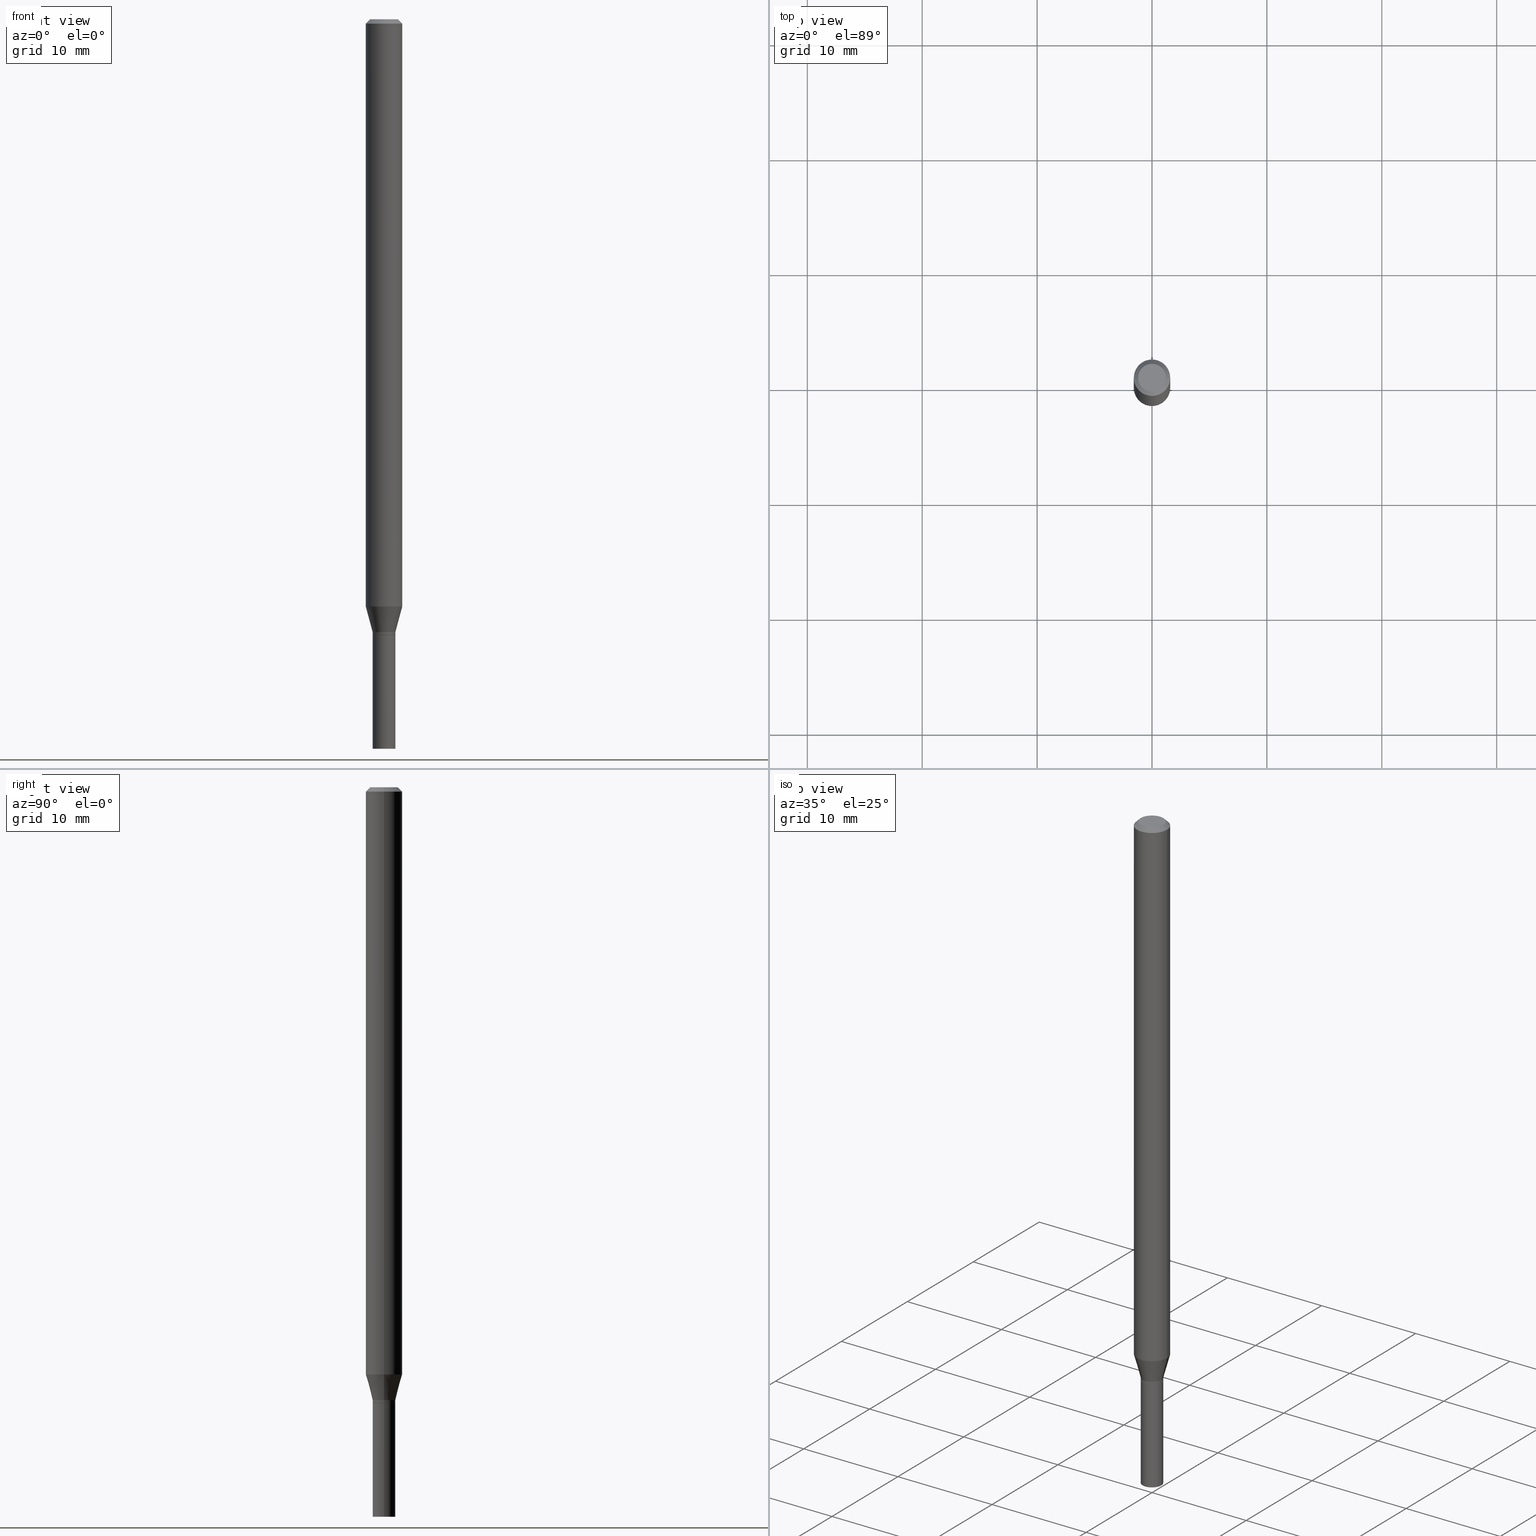
[diagram: canonical four-view strip — front | top / right | iso, engineering-drawing reading convention]
A machine part, canonical four-view strip (front | top / right | iso — engineering-drawing reading convention). The complete STEP part file that produces these views, byte-faithful:
ISO-10303-21;
HEADER;
FILE_DESCRIPTION (( 'STEP AP203' ),
    '1' );
FILE_NAME ('00601.STEP',
    '2024-03-19T21:58:08',
    ( '' ),
    ( '' ),
    'SwSTEP 2.0',
    'SolidWorks 2023',
    '' );
FILE_SCHEMA (( 'CONFIG_CONTROL_DESIGN' ));
ENDSEC;

DATA;
#1 = APPROVAL_STATUS ( 'not_yet_approved' ) ;
#2 = ORIENTED_EDGE ( 'NONE', *, *, #421, .T. ) ;
#3 = ORIENTED_EDGE ( 'NONE', *, *, #85, .F. ) ;
#4 = EDGE_CURVE ( 'NONE', #404, #311, #418, .T. ) ;
#5 = ORIENTED_EDGE ( 'NONE', *, *, #381, .F. ) ;
#6 = ORIENTED_EDGE ( 'NONE', *, *, #223, .F. ) ;
#7 = CARTESIAN_POINT ( 'NONE',  ( 5.159939181050639071E-29, -7.367025624959036939E-15, -2.110000000000000320 ) ) ;
#8 = AXIS2_PLACEMENT_3D ( 'NONE', #236, #93, #376 ) ;
#9 = DIRECTION ( 'NONE',  ( -2.445468806185136597E-29, 3.491481338843145583E-15, 1.000000000000000000 ) ) ;
#10 = DIRECTION ( 'NONE',  ( 1.000000000000000000, -6.982962677686266711E-15, 4.876176775795935793E-29 ) ) ;
#11 = ORIENTED_EDGE ( 'NONE', *, *, #85, .T. ) ;
#12 = CYLINDRICAL_SURFACE ( 'NONE', #249, 0.06250000000000000000 ) ;
#13 = EDGE_CURVE ( 'NONE', #330, #117, #204, .T. ) ;
#14 = APPLICATION_CONTEXT ( 'configuration controlled 3d designs of mechanical parts and assemblies' ) ;
#15 = ADVANCED_FACE ( 'NONE', ( #382 ), #203, .T. ) ;
#16 = VECTOR ( 'NONE', #465, 39.37007874015748143 ) ;
#17 = CC_DESIGN_SECURITY_CLASSIFICATION ( #372, ( #386 ) ) ;
#18 = DIRECTION ( 'NONE',  ( -1.000000000000000000, 6.982962677686265922E-15, -4.876176775795935793E-29 ) ) ;
#19 = ORIENTED_EDGE ( 'NONE', *, *, #145, .F. ) ;
#20 = CARTESIAN_POINT ( 'NONE',  ( 0.03899999999999999994, -2.723355444297643682E-16, 1.901708942560414931E-30 ) ) ;
#21 = CARTESIAN_POINT ( 'NONE',  ( 5.135484492988787526E-29, -7.332110811570605290E-15, -2.100000000000000089 ) ) ;
#22 = CIRCLE ( 'NONE', #413, 0.06250000000000000000 ) ;
#23 = DIRECTION ( 'NONE',  ( -2.445468806185136597E-29, 3.491481338843145583E-15, 1.000000000000000000 ) ) ;
#24 = ORIENTED_EDGE ( 'NONE', *, *, #389, .F. ) ;
#25 = ADVANCED_BREP_SHAPE_REPRESENTATION ( '00601', ( #336, #178, #83 ), #66 ) ;
#26 = CARTESIAN_POINT ( 'NONE',  ( 6.113672015462842613E-29, -8.728703347107864943E-15, -2.500000000000000000 ) ) ;
#27 = VERTEX_POINT ( 'NONE', #172 ) ;
#28 = EDGE_CURVE ( 'NONE', #127, #290, #143, .T. ) ;
#29 = LENGTH_MEASURE_WITH_UNIT ( LENGTH_MEASURE( 0.02539999999999999897 ), #390 );
#30 = CARTESIAN_POINT ( 'NONE',  ( 0.000000000000000000, 0.000000000000000000, 0.000000000000000000 ) ) ;
#31 = CIRCLE ( 'NONE', #430, 0.03899999999999999994 ) ;
#32 = LOCAL_TIME ( 17, 58, 8.000000000000000000, #400 ) ;
#33 = CALENDAR_DATE ( 2024, 19, 3 ) ;
#34 = PERSON_AND_ORGANIZATION ( #345, #409 ) ;
#35 = CC_DESIGN_PERSON_AND_ORGANIZATION_ASSIGNMENT ( #282, #428, ( #208 ) ) ;
#36 = LINE ( 'NONE', #432, #161 ) ;
#37 = CARTESIAN_POINT ( 'NONE',  ( 3.668203209277705088E-31, -5.237222008264718399E-17, -0.01499999999999999944 ) ) ;
#38 = APPROVAL_PERSON_ORGANIZATION ( #34, #179, #398 ) ;
#39 = ORIENTED_EDGE ( 'NONE', *, *, #96, .T. ) ;
#40 = DIRECTION ( 'NONE',  ( 1.000000000000000000, -6.982962677686265922E-15, 4.876176775795935793E-29 ) ) ;
#41 = CC_DESIGN_PERSON_AND_ORGANIZATION_ASSIGNMENT ( #459, #142, ( #386 ) ) ;
#42 = ORIENTED_EDGE ( 'NONE', *, *, #438, .T. ) ;
#43 = ORIENTED_EDGE ( 'NONE', *, *, #13, .T. ) ;
#44 = DIMENSIONAL_EXPONENTS ( 1.000000000000000000, 0.000000000000000000, 0.000000000000000000, 0.000000000000000000, 0.000000000000000000, 0.000000000000000000, 0.000000000000000000 ) ;
#45 = AXIS2_PLACEMENT_3D ( 'NONE', #335, #300, #364 ) ;
#46 = EDGE_LOOP ( 'NONE', ( #75, #293, #42, #111 ) ) ;
#47 = CC_DESIGN_APPROVAL ( #173, ( #425 ) ) ;
#48 = DIRECTION ( 'NONE',  ( 1.000000000000000000, -6.982962677686258033E-15, 0.000000000000000000 ) ) ;
#49 = FACE_OUTER_BOUND ( 'NONE', #358, .T. ) ;
#50 = SHAPE_DEFINITION_REPRESENTATION ( #181, #25 ) ;
#51 = DESIGN_CONTEXT ( 'detailed design', #408, 'design' ) ;
#52 = VECTOR ( 'NONE', #270, 39.37007874015748143 ) ;
#53 = ORIENTED_EDGE ( 'NONE', *, *, #438, .F. ) ;
#54 = DIRECTION ( 'NONE',  ( 1.000000000000000000, -6.982962677686265922E-15, 4.876176775795935793E-29 ) ) ;
#55 = DIRECTION ( 'NONE',  ( -2.445468806185136597E-29, 3.491481338843145583E-15, 1.000000000000000000 ) ) ;
#56 = CARTESIAN_POINT ( 'NONE',  ( 5.159939181050637950E-29, -7.367025624959036939E-15, -2.109999999999999876 ) ) ;
#57 = CARTESIAN_POINT ( 'NONE',  ( 0.000000000000000000, 0.000000000000000000, 0.000000000000000000 ) ) ;
#58 = DIRECTION ( 'NONE',  ( -2.445468806185136597E-29, 3.491481338843145583E-15, 1.000000000000000000 ) ) ;
#59 = AXIS2_PLACEMENT_3D ( 'NONE', #426, #393, #319 ) ;
#60 = VECTOR ( 'NONE', #445, 39.37007874015748143 ) ;
#61 = DIRECTION ( 'NONE',  ( -2.445468806185136597E-29, 3.491481338843145583E-15, 1.000000000000000000 ) ) ;
#62 = LINE ( 'NONE', #304, #317 ) ;
#63 = APPLICATION_PROTOCOL_DEFINITION ( 'international standard', 'config_control_design', 1994, #408 ) ;
#64 = CARTESIAN_POINT ( 'NONE',  ( -0.03849999999999999256, -7.093466671691397730E-15, -2.109999999999999876 ) ) ;
#65 = CLOSED_SHELL ( 'NONE', ( #297, #446, #176, #253, #285, #312, #163, #192, #209, #216, #69, #238 ) ) ;
#66 =( GEOMETRIC_REPRESENTATION_CONTEXT ( 3 ) GLOBAL_UNCERTAINTY_ASSIGNED_CONTEXT ( ( #84 ) ) GLOBAL_UNIT_ASSIGNED_CONTEXT ( ( #395, #454, #324 ) ) REPRESENTATION_CONTEXT ( 'NONE', 'WORKASPACE' ) );
#67 = ORIENTED_EDGE ( 'NONE', *, *, #160, .T. ) ;
#68 = MECHANICAL_CONTEXT ( 'NONE', #14, 'mechanical' ) ;
#69 = ADVANCED_FACE ( 'NONE', ( #280 ), #466, .T. ) ;
#70 = DIRECTION ( 'NONE',  ( 1.000000000000000000, -6.982962677686265922E-15, 4.876176775795935793E-29 ) ) ;
#71 = DIRECTION ( 'NONE',  ( -1.000000000000000000, 6.982962677686266711E-15, 0.000000000000000000 ) ) ;
#72 = PERSON_AND_ORGANIZATION ( #345, #409 ) ;
#73 = CARTESIAN_POINT ( 'NONE',  ( 3.668203209277705088E-31, -5.237222008264718399E-17, -0.01499999999999999944 ) ) ;
#74 = DATE_AND_TIME ( #248, #250 ) ;
#75 = ORIENTED_EDGE ( 'NONE', *, *, #184, .F. ) ;
#76 = CC_DESIGN_PERSON_AND_ORGANIZATION_ASSIGNMENT ( #138, #254, ( #386 ) ) ;
#77 = DIRECTION ( 'NONE',  ( -2.438088387897960049E-29, 3.491481338843145188E-15, 1.000000000000000000 ) ) ;
#78 = PLANE ( 'NONE',  #135 ) ;
#79 = CARTESIAN_POINT ( 'NONE',  ( 0.03899999999999999994, -7.639361169388800962E-15, -2.110000000000000320 ) ) ;
#80 = FACE_OUTER_BOUND ( 'NONE', #150, .T. ) ;
#81 = CALENDAR_DATE ( 2024, 19, 3 ) ;
#82 = AXIS2_PLACEMENT_3D ( 'NONE', #57, #23, #132 ) ;
#83 = AXIS2_PLACEMENT_3D ( 'NONE', #215, #289, #245 ) ;
#84 = UNCERTAINTY_MEASURE_WITH_UNIT (LENGTH_MEASURE( 1.000000000000000082E-05 ), #395, 'distance_accuracy_value', 'NONE');
#85 = EDGE_CURVE ( 'NONE', #117, #330, #316, .T. ) ;
#86 = CARTESIAN_POINT ( 'NONE',  ( 4.921009067913102377E-29, -7.025896746439933678E-15, -2.012296806022130458 ) ) ;
#87 = ORIENTED_EDGE ( 'NONE', *, *, #399, .F. ) ;
#88 = PRODUCT_RELATED_PRODUCT_CATEGORY ( 'detail', '', ( #208 ) ) ;
#89 = DIRECTION ( 'NONE',  ( -2.445468806185136597E-29, 3.491481338843145583E-15, 1.000000000000000000 ) ) ;
#90 = VECTOR ( 'NONE', #128, 39.37007874015748854 ) ;
#91 = CARTESIAN_POINT ( 'NONE',  ( -4.193002486944321875E-45, 5.986496290552430293E-31, 1.714600683655944577E-16 ) ) ;
#92 = ORIENTED_EDGE ( 'NONE', *, *, #433, .T. ) ;
#93 = DIRECTION ( 'NONE',  ( -2.445468806185136597E-29, 3.491481338843145583E-15, 1.000000000000000000 ) ) ;
#94 = DIRECTION ( 'NONE',  ( 1.000000000000000000, -6.982962677686271444E-15, 0.000000000000000000 ) ) ;
#95 = DIRECTION ( 'NONE',  ( -2.445468806185136597E-29, 3.491481338843145583E-15, 1.000000000000000000 ) ) ;
#96 = EDGE_CURVE ( 'NONE', #311, #309, #22, .T. ) ;
#97 = CARTESIAN_POINT ( 'NONE',  ( 5.135484492988787526E-29, -7.332110811570605290E-15, -2.100000000000000089 ) ) ;
#98 = AXIS2_PLACEMENT_3D ( 'NONE', #278, #61, #206 ) ;
#99 = AXIS2_PLACEMENT_3D ( 'NONE', #379, #55, #94 ) ;
#100 = CARTESIAN_POINT ( 'NONE',  ( 5.159939181050637950E-29, -7.367025624959036939E-15, -2.109999999999999876 ) ) ;
#101 = DATE_AND_TIME ( #320, #361 ) ;
#102 = DIRECTION ( 'NONE',  ( 1.000000000000000000, -6.982962677686271444E-15, 0.000000000000000000 ) ) ;
#103 = SECURITY_CLASSIFICATION_LEVEL ( 'unclassified' ) ;
#104 = APPROVAL ( #463, 'UNSPECIFIED' ) ;
#105 = PERSON_AND_ORGANIZATION ( #345, #409 ) ;
#106 = APPROVAL_PERSON_ORGANIZATION ( #355, #104, #228 ) ;
#107 = APPROVAL_ROLE ( '' ) ;
#108 = CARTESIAN_POINT ( 'NONE',  ( -0.03899999999999992362, 2.771116669464385298E-16, -1.918384685199409225E-30 ) ) ;
#109 = VERTEX_POINT ( 'NONE', #396 ) ;
#110 = COORDINATED_UNIVERSAL_TIME_OFFSET ( 5, 0, .BEHIND. ) ;
#111 = ORIENTED_EDGE ( 'NONE', *, *, #265, .F. ) ;
#112 = EDGE_CURVE ( 'NONE', #330, #217, #392, .T. ) ;
#113 = DIRECTION ( 'NONE',  ( -2.445468806185136597E-29, 3.491481338843145583E-15, 1.000000000000000000 ) ) ;
#114 = AXIS2_PLACEMENT_3D ( 'NONE', #442, #331, #329 ) ;
#115 = DIRECTION ( 'NONE',  ( 1.000000000000000000, -6.982962677686266711E-15, 4.876176775795935232E-29 ) ) ;
#116 = VECTOR ( 'NONE', #378, 39.37007874015748143 ) ;
#117 = VERTEX_POINT ( 'NONE', #211 ) ;
#118 = ORIENTED_EDGE ( 'NONE', *, *, #371, .T. ) ;
#119 = DIRECTION ( 'NONE',  ( -2.445468806185136597E-29, 3.491481338843145583E-15, 1.000000000000000000 ) ) ;
#120 = CC_DESIGN_PERSON_AND_ORGANIZATION_ASSIGNMENT ( #72, #460, ( #372 ) ) ;
#121 = ORIENTED_EDGE ( 'NONE', *, *, #160, .F. ) ;
#122 = CARTESIAN_POINT ( 'NONE',  ( 0.000000000000000000, 0.000000000000000000, 0.000000000000000000 ) ) ;
#123 = AXIS2_PLACEMENT_3D ( 'NONE', #7, #77, #40 ) ;
#124 = CIRCLE ( 'NONE', #354, 0.03899999999999964606 ) ;
#125 = CARTESIAN_POINT ( 'NONE',  ( -0.06250000000000000000, -3.095045273411227960E-15, -0.01499999999999999944 ) ) ;
#126 = DIRECTION ( 'NONE',  ( 1.000000000000000000, -6.982962677686258033E-15, 0.000000000000000000 ) ) ;
#127 = VERTEX_POINT ( 'NONE', #140 ) ;
#128 = DIRECTION ( 'NONE',  ( 0.7071067811869518049, -2.468850131086492060E-15, 0.7071067811861430075 ) ) ;
#129 = DIRECTION ( 'NONE',  ( 1.000000000000000000, -6.982962677686267499E-15, 4.852736867747366768E-29 ) ) ;
#130 = VECTOR ( 'NONE', #351, 39.37007874015748143 ) ;
#131 = DIRECTION ( 'NONE',  ( -2.445468806185136597E-29, 3.491481338843145583E-15, 1.000000000000000000 ) ) ;
#132 = DIRECTION ( 'NONE',  ( 1.000000000000000000, -6.982962677686265922E-15, 4.876176775795935793E-29 ) ) ;
#133 = FACE_OUTER_BOUND ( 'NONE', #295, .T. ) ;
#134 = FACE_OUTER_BOUND ( 'NONE', #440, .T. ) ;
#135 = AXIS2_PLACEMENT_3D ( 'NONE', #262, #267, #226 ) ;
#136 = ADVANCED_FACE ( 'NONE', ( #284 ), #464, .F. ) ;
#137 = CONICAL_SURFACE ( 'NONE', #437, 0.03849999999999999256, 0.7853981633980202659 ) ;
#138 = PERSON_AND_ORGANIZATION ( #345, #409 ) ;
#139 = CC_DESIGN_PERSON_AND_ORGANIZATION_ASSIGNMENT ( #105, #210, ( #425 ) ) ;
#140 = CARTESIAN_POINT ( 'NONE',  ( -0.03899999999999999994, -7.770752819087011622E-15, -2.500000000000000000 ) ) ;
#141 = DATE_TIME_ROLE ( 'creation_date' ) ;
#142 = PERSON_AND_ORGANIZATION_ROLE ( 'creator' ) ;
#143 = CIRCLE ( 'NONE', #98, 0.03899999999999999994 ) ;
#144 = CIRCLE ( 'NONE', #164, 0.03899999999999999994 ) ;
#145 = EDGE_CURVE ( 'NONE', #328, #311, #36, .T. ) ;
#146 = APPROVAL_STATUS ( 'not_yet_approved' ) ;
#147 = ORIENTED_EDGE ( 'NONE', *, *, #455, .F. ) ;
#148 = ORIENTED_EDGE ( 'NONE', *, *, #112, .F. ) ;
#149 = COORDINATED_UNIVERSAL_TIME_OFFSET ( 5, 0, .BEHIND. ) ;
#150 = EDGE_LOOP ( 'NONE', ( #121, #370, #388, #436 ) ) ;
#151 = DIRECTION ( 'NONE',  ( -2.445468806185136597E-29, 3.491481338843145583E-15, 1.000000000000000000 ) ) ;
#152 = CIRCLE ( 'NONE', #273, 0.03899999999999964606 ) ;
#153 = ORIENTED_EDGE ( 'NONE', *, *, #416, .T. ) ;
#154 = FACE_OUTER_BOUND ( 'NONE', #272, .T. ) ;
#155 = CC_DESIGN_DATE_AND_TIME_ASSIGNMENT ( #424, #141, ( #425 ) ) ;
#156 = CARTESIAN_POINT ( 'NONE',  ( 5.159939181050639071E-29, -7.367025624959036939E-15, -2.110000000000000320 ) ) ;
#157 = EDGE_LOOP ( 'NONE', ( #231, #325, #6, #256 ) ) ;
#158 = ORIENTED_EDGE ( 'NONE', *, *, #421, .F. ) ;
#159 = FACE_OUTER_BOUND ( 'NONE', #341, .T. ) ;
#160 = EDGE_CURVE ( 'NONE', #217, #109, #323, .T. ) ;
#161 = VECTOR ( 'NONE', #183, 39.37007874015748143 ) ;
#162 = LOCAL_TIME ( 17, 58, 8.000000000000000000, #149 ) ;
#163 = ADVANCED_FACE ( 'NONE', ( #339 ), #12, .T. ) ;
#164 = AXIS2_PLACEMENT_3D ( 'NONE', #26, #165, #199 ) ;
#165 = DIRECTION ( 'NONE',  ( -2.445468806185136597E-29, 3.491481338843145583E-15, 1.000000000000000000 ) ) ;
#166 = DIRECTION ( 'NONE',  ( -2.445468806185136597E-29, 3.491481338843145583E-15, 1.000000000000000000 ) ) ;
#167 = LINE ( 'NONE', #275, #116 ) ;
#168 = ORIENTED_EDGE ( 'NONE', *, *, #13, .F. ) ;
#169 = FACE_OUTER_BOUND ( 'NONE', #46, .T. ) ;
#170 = CIRCLE ( 'NONE', #45, 0.06250000000000000000 ) ;
#171 = CARTESIAN_POINT ( 'NONE',  ( -0.03899999999999999994, -7.770752819087011622E-15, -2.110000000000000320 ) ) ;
#172 = CARTESIAN_POINT ( 'NONE',  ( 0.03899999999999964606, -7.604446356000367735E-15, -2.100000000000000089 ) ) ;
#173 = APPROVAL ( #1, 'UNSPECIFIED' ) ;
#174 = DIRECTION ( 'NONE',  ( -2.445468806185136597E-29, 3.491481338843145583E-15, 1.000000000000000000 ) ) ;
#175 = DIRECTION ( 'NONE',  ( -2.445468806185136877E-29, 3.491481338843145188E-15, 1.000000000000000000 ) ) ;
#176 = ADVANCED_FACE ( 'NONE', ( #322 ), #422, .T. ) ;
#177 = DIRECTION ( 'NONE',  ( 1.000000000000000000, -6.982962677686271444E-15, 0.000000000000000000 ) ) ;
#178 = MANIFOLD_SOLID_BREP ( 'Body-Move/Copy2[2]', #65 ) ;
#179 = APPROVAL ( #146, 'UNSPECIFIED' ) ;
#180 = AXIS2_PLACEMENT_3D ( 'NONE', #190, #151, #10 ) ;
#181 = PRODUCT_DEFINITION_SHAPE ( 'NONE', 'NONE',  #425 ) ;
#182 = COORDINATED_UNIVERSAL_TIME_OFFSET ( 5, 0, .BEHIND. ) ;
#183 = DIRECTION ( 'NONE',  ( 0.7071067811865435759, -7.319954787623241846E-15, -0.7071067811865514585 ) ) ;
#184 = EDGE_CURVE ( 'NONE', #127, #406, #218, .T. ) ;
#185 = EDGE_LOOP ( 'NONE', ( #11, #191, #158, #306 ) ) ;
#186 = AXIS2_PLACEMENT_3D ( 'NONE', #122, #119, #115 ) ;
#187 = ORIENTED_EDGE ( 'NONE', *, *, #4, .F. ) ;
#188 = CARTESIAN_POINT ( 'NONE',  ( 0.03900000000000019423, -7.637615428719381825E-15, -2.109500000000000153 ) ) ;
#189 = ORIENTED_EDGE ( 'NONE', *, *, #371, .F. ) ;
#190 = CARTESIAN_POINT ( 'NONE',  ( 0.000000000000000000, 0.000000000000000000, 0.000000000000000000 ) ) ;
#191 = ORIENTED_EDGE ( 'NONE', *, *, #112, .T. ) ;
#192 = ADVANCED_FACE ( 'NONE', ( #134 ), #340, .T. ) ;
#193 = AXIS2_PLACEMENT_3D ( 'NONE', #287, #251, #70 ) ;
#194 = ORIENTED_EDGE ( 'NONE', *, *, #255, .F. ) ;
#195 = VERTEX_POINT ( 'NONE', #362 ) ;
#196 = CYLINDRICAL_SURFACE ( 'NONE', #186, 0.03899999999999992362 ) ;
#197 = CARTESIAN_POINT ( 'NONE',  ( 5.159939181050639071E-29, -7.367025624959036939E-15, -2.110000000000000320 ) ) ;
#198 = CLOSED_SHELL ( 'NONE', ( #15, #136, #384, #301 ) ) ;
#199 = DIRECTION ( 'NONE',  ( 1.000000000000000000, -6.982962677686283277E-15, 0.000000000000000000 ) ) ;
#200 = CARTESIAN_POINT ( 'NONE',  ( 0.03899999999999964606, -7.604446356000367735E-15, -2.100000000000000089 ) ) ;
#201 = DIRECTION ( 'NONE',  ( -2.445468806185136877E-29, 3.491481338843145188E-15, 1.000000000000000000 ) ) ;
#202 = DIRECTION ( 'NONE',  ( 1.000000000000000000, -6.982962677686271444E-15, 0.000000000000000000 ) ) ;
#203 = CYLINDRICAL_SURFACE ( 'NONE', #82, 0.03899999999999999994 ) ;
#204 = CIRCLE ( 'NONE', #99, 0.03849999999999999256 ) ;
#205 = DIRECTION ( 'NONE',  ( 1.000000000000000000, -6.982962677686266711E-15, 0.000000000000000000 ) ) ;
#206 = DIRECTION ( 'NONE',  ( 1.000000000000000000, -6.982962677686283277E-15, 0.000000000000000000 ) ) ;
#207 = DIRECTION ( 'NONE',  ( -2.445468806185136597E-29, 3.491481338843145583E-15, 1.000000000000000000 ) ) ;
#208 = PRODUCT ( '00601', '00601', '', ( #68 ) ) ;
#209 = ADVANCED_FACE ( 'NONE', ( #49 ), #78, .F. ) ;
#210 = PERSON_AND_ORGANIZATION_ROLE ( 'creator' ) ;
#211 = CARTESIAN_POINT ( 'NONE',  ( 0.03849999999999999256, -7.635869688049957955E-15, -2.109999999999999876 ) ) ;
#212 = DATE_AND_TIME ( #247, #32 ) ;
#213 = CIRCLE ( 'NONE', #288, 0.06250000000000000000 ) ;
#214 = DIRECTION ( 'NONE',  ( -2.445468806185136597E-29, 3.491481338843145583E-15, 1.000000000000000000 ) ) ;
#215 = CARTESIAN_POINT ( 'NONE',  ( 0.000000000000000000, 0.000000000000000000, 0.000000000000000000 ) ) ;
#216 = ADVANCED_FACE ( 'NONE', ( #159 ), #222, .F. ) ;
#217 = VERTEX_POINT ( 'NONE', #374 ) ;
#218 = LINE ( 'NONE', #283, #16 ) ;
#219 = VERTEX_POINT ( 'NONE', #188 ) ;
#220 = VECTOR ( 'NONE', #461, 39.37007874015748854 ) ;
#221 = CC_DESIGN_APPROVAL ( #104, ( #372 ) ) ;
#222 = PLANE ( 'NONE',  #123 ) ;
#223 = EDGE_CURVE ( 'NONE', #404, #195, #170, .T. ) ;
#224 = EDGE_LOOP ( 'NONE', ( #264, #291, #194, #53 ) ) ;
#225 = DIRECTION ( 'NONE',  ( 2.438088387897960049E-29, -3.491481338843145188E-15, -1.000000000000000000 ) ) ;
#226 = DIRECTION ( 'NONE',  ( -1.000000000000000000, 6.982962677686265922E-15, -4.876176775795935793E-29 ) ) ;
#227 = FACE_OUTER_BOUND ( 'NONE', #157, .T. ) ;
#228 = APPROVAL_ROLE ( '' ) ;
#229 = CONICAL_SURFACE ( 'NONE', #414, 0.03899999999999964606, 0.2617993877991505736 ) ;
#230 = EDGE_CURVE ( 'NONE', #217, #219, #258, .T. ) ;
#231 = ORIENTED_EDGE ( 'NONE', *, *, #381, .T. ) ;
#232 = LINE ( 'NONE', #20, #327 ) ;
#233 = ORIENTED_EDGE ( 'NONE', *, *, #28, .F. ) ;
#234 = AXIS2_PLACEMENT_3D ( 'NONE', #91, #246, #391 ) ;
#235 = AXIS2_PLACEMENT_3D ( 'NONE', #453, #279, #129 ) ;
#236 = CARTESIAN_POINT ( 'NONE',  ( 5.158716446647546270E-29, -7.365279884289616224E-15, -2.109500000000000153 ) ) ;
#237 = CARTESIAN_POINT ( 'NONE',  ( 0.06250000000000000000, -4.364351673553916694E-16, 3.047610484872459871E-30 ) ) ;
#238 = ADVANCED_FACE ( 'NONE', ( #80 ), #196, .T. ) ;
#239 = FACE_OUTER_BOUND ( 'NONE', #185, .T. ) ;
#240 = ORIENTED_EDGE ( 'NONE', *, *, #366, .F. ) ;
#241 = CARTESIAN_POINT ( 'NONE',  ( -0.03849999999999999256, -7.090817444517286529E-15, -2.109999999999999876 ) ) ;
#242 = CARTESIAN_POINT ( 'NONE',  ( -0.06250000000000000000, 4.440892098500626162E-16, -3.074334431409316114E-30 ) ) ;
#243 = AXIS2_PLACEMENT_3D ( 'NONE', #86, #131, #419 ) ;
#244 = DIRECTION ( 'NONE',  ( -2.445468806185136597E-29, 3.491481338843145583E-15, 1.000000000000000000 ) ) ;
#245 = DIRECTION ( 'NONE',  ( 1.000000000000000000, 0.000000000000000000, 0.000000000000000000 ) ) ;
#246 = DIRECTION ( 'NONE',  ( -2.445468806185136597E-29, 3.491481338843145583E-15, 1.000000000000000000 ) ) ;
#247 = CALENDAR_DATE ( 2024, 19, 3 ) ;
#248 = CALENDAR_DATE ( 2024, 19, 3 ) ;
#249 = AXIS2_PLACEMENT_3D ( 'NONE', #30, #429, #315 ) ;
#250 = LOCAL_TIME ( 17, 58, 8.000000000000000000, #182 ) ;
#251 = DIRECTION ( 'NONE',  ( -2.438088387897960049E-29, 3.491481338843145188E-15, 1.000000000000000000 ) ) ;
#252 = APPROVAL_DATE_TIME ( #74, #173 ) ;
#253 = ADVANCED_FACE ( 'NONE', ( #333 ), #368, .T. ) ;
#254 = PERSON_AND_ORGANIZATION_ROLE ( 'design_supplier' ) ;
#255 = EDGE_CURVE ( 'NONE', #261, #406, #377, .T. ) ;
#256 = ORIENTED_EDGE ( 'NONE', *, *, #356, .F. ) ;
#257 = CARTESIAN_POINT ( 'NONE',  ( 0.000000000000000000, 0.000000000000000000, 0.000000000000000000 ) ) ;
#258 = CIRCLE ( 'NONE', #114, 0.03900000000000019423 ) ;
#259 = CONICAL_SURFACE ( 'NONE', #423, 0.03899999999999964606, 0.2617993877991505736 ) ;
#260 = EDGE_CURVE ( 'NONE', #328, #410, #435, .T. ) ;
#261 = VERTEX_POINT ( 'NONE', #79 ) ;
#262 = CARTESIAN_POINT ( 'NONE',  ( 3.316907271900976096E-16, 0.04749999999999999362, -8.011532941225217989E-17 ) ) ;
#263 = EDGE_LOOP ( 'NONE', ( #363, #415, #39, #147 ) ) ;
#264 = ORIENTED_EDGE ( 'NONE', *, *, #366, .T. ) ;
#265 = EDGE_CURVE ( 'NONE', #406, #261, #31, .T. ) ;
#266 = VECTOR ( 'NONE', #175, 39.37007874015748143 ) ;
#267 = DIRECTION ( 'NONE',  ( 2.438088387897960049E-29, -3.491481338843145188E-15, -1.000000000000000000 ) ) ;
#268 = AXIS2_PLACEMENT_3D ( 'NONE', #257, #113, #403 ) ;
#269 = PLANE ( 'NONE',  #302 ) ;
#270 = DIRECTION ( 'NONE',  ( 0.2588190451025218497, 1.565188264969618221E-15, 0.9659258262890679791 ) ) ;
#271 = DIRECTION ( 'NONE',  ( -2.445468806185136877E-29, 3.491481338843145188E-15, 1.000000000000000000 ) ) ;
#272 = EDGE_LOOP ( 'NONE', ( #2, #67, #5, #434 ) ) ;
#273 = AXIS2_PLACEMENT_3D ( 'NONE', #21, #343, #346 ) ;
#274 = ORIENTED_EDGE ( 'NONE', *, *, #260, .T. ) ;
#275 = CARTESIAN_POINT ( 'NONE',  ( 0.03899999999999992362, -2.723355444297638751E-16, 1.901708942560411078E-30 ) ) ;
#276 = ORIENTED_EDGE ( 'NONE', *, *, #462, .F. ) ;
#277 = CARTESIAN_POINT ( 'NONE',  ( -0.04749999999999999362, 3.578768372314213957E-16, 1.714600683655920665E-16 ) ) ;
#278 = CARTESIAN_POINT ( 'NONE',  ( 6.113672015462842613E-29, -8.728703347107864943E-15, -2.500000000000000000 ) ) ;
#279 = DIRECTION ( 'NONE',  ( -2.445468806185136597E-29, 3.491481338843145583E-15, 1.000000000000000000 ) ) ;
#280 = FACE_OUTER_BOUND ( 'NONE', #347, .T. ) ;
#281 = AXIS2_PLACEMENT_3D ( 'NONE', #305, #89, #54 ) ;
#282 = PERSON_AND_ORGANIZATION ( #345, #409 ) ;
#283 = CARTESIAN_POINT ( 'NONE',  ( -0.03899999999999999994, 2.771116669464390721E-16, -1.918384685199413078E-30 ) ) ;
#284 = FACE_OUTER_BOUND ( 'NONE', #294, .T. ) ;
#285 = ADVANCED_FACE ( 'NONE', ( #227 ), #259, .T. ) ;
#286 = DATE_TIME_ROLE ( 'classification_date' ) ;
#287 = CARTESIAN_POINT ( 'NONE',  ( 6.198122052593289668E-29, -8.607766087339451973E-15, -2.500000000000000000 ) ) ;
#288 = AXIS2_PLACEMENT_3D ( 'NONE', #448, #58, #205 ) ;
#289 = DIRECTION ( 'NONE',  ( 0.000000000000000000, 0.000000000000000000, 1.000000000000000000 ) ) ;
#290 = VERTEX_POINT ( 'NONE', #337 ) ;
#291 = ORIENTED_EDGE ( 'NONE', *, *, #184, .T. ) ;
#292 = DATE_AND_TIME ( #81, #162 ) ;
#293 = ORIENTED_EDGE ( 'NONE', *, *, #28, .T. ) ;
#294 = EDGE_LOOP ( 'NONE', ( #240, #233 ) ) ;
#295 = EDGE_LOOP ( 'NONE', ( #303, #92, #385, #276 ) ) ;
#296 = CYLINDRICAL_SURFACE ( 'NONE', #268, 0.03899999999999992362 ) ;
#297 = ADVANCED_FACE ( 'NONE', ( #154 ), #296, .T. ) ;
#298 = EDGE_LOOP ( 'NONE', ( #452, #350 ) ) ;
#299 = CARTESIAN_POINT ( 'NONE',  ( 5.135484492988787526E-29, -7.332110811570605290E-15, -2.100000000000000089 ) ) ;
#300 = DIRECTION ( 'NONE',  ( -2.445468806185136597E-29, 3.491481338843145583E-15, 1.000000000000000000 ) ) ;
#301 = ADVANCED_FACE ( 'NONE', ( #375 ), #269, .F. ) ;
#302 = AXIS2_PLACEMENT_3D ( 'NONE', #338, #225, #18 ) ;
#303 = ORIENTED_EDGE ( 'NONE', *, *, #444, .F. ) ;
#304 = CARTESIAN_POINT ( 'NONE',  ( -0.03899999999999964606, -7.054999144624169126E-15, -2.100000000000000089 ) ) ;
#305 = CARTESIAN_POINT ( 'NONE',  ( 0.000000000000000000, 0.000000000000000000, 0.000000000000000000 ) ) ;
#306 = ORIENTED_EDGE ( 'NONE', *, *, #416, .F. ) ;
#307 = ORIENTED_EDGE ( 'NONE', *, *, #4, .T. ) ;
#308 = CYLINDRICAL_SURFACE ( 'NONE', #281, 0.03899999999999999994 ) ;
#309 = VERTEX_POINT ( 'NONE', #125 ) ;
#310 = LINE ( 'NONE', #451, #130 ) ;
#311 = VERTEX_POINT ( 'NONE', #412 ) ;
#312 = ADVANCED_FACE ( 'NONE', ( #133 ), #229, .T. ) ;
#313 = LINE ( 'NONE', #242, #60 ) ;
#314 = CARTESIAN_POINT ( 'NONE',  ( 5.159939181050637950E-29, -7.367025624959036939E-15, -2.109999999999999876 ) ) ;
#315 = DIRECTION ( 'NONE',  ( 1.000000000000000000, -6.982962677686266711E-15, 4.876176775795935793E-29 ) ) ;
#316 = CIRCLE ( 'NONE', #326, 0.03849999999999999256 ) ;
#317 = VECTOR ( 'NONE', #411, 39.37007874015748143 ) ;
#318 = APPROVAL_DATE_TIME ( #101, #179 ) ;
#319 = DIRECTION ( 'NONE',  ( -1.000000000000000000, 6.982962677686266711E-15, 0.000000000000000000 ) ) ;
#320 = CALENDAR_DATE ( 2024, 19, 3 ) ;
#321 = EDGE_CURVE ( 'NONE', #219, #27, #167, .T. ) ;
#322 = FACE_OUTER_BOUND ( 'NONE', #263, .T. ) ;
#323 = LINE ( 'NONE', #108, #266 ) ;
#324 =( NAMED_UNIT ( * ) SI_UNIT ( $, .STERADIAN. ) SOLID_ANGLE_UNIT ( ) );
#325 = ORIENTED_EDGE ( 'NONE', *, *, #444, .T. ) ;
#326 = AXIS2_PLACEMENT_3D ( 'NONE', #314, #457, #102 ) ;
#327 = VECTOR ( 'NONE', #271, 39.37007874015748143 ) ;
#328 = VERTEX_POINT ( 'NONE', #443 ) ;
#329 = DIRECTION ( 'NONE',  ( 1.000000000000000000, -6.982962677686273021E-15, 0.000000000000000000 ) ) ;
#330 = VERTEX_POINT ( 'NONE', #241 ) ;
#331 = DIRECTION ( 'NONE',  ( -2.445468806185136597E-29, 3.491481338843145583E-15, 1.000000000000000000 ) ) ;
#332 = VECTOR ( 'NONE', #201, 39.37007874015748143 ) ;
#333 = FACE_OUTER_BOUND ( 'NONE', #344, .T. ) ;
#334 = ORIENTED_EDGE ( 'NONE', *, *, #455, .T. ) ;
#335 = CARTESIAN_POINT ( 'NONE',  ( 4.921009067913102377E-29, -7.025896746439933678E-15, -2.012296806022130458 ) ) ;
#336 = MANIFOLD_SOLID_BREP ( 'Body-Move/Copy2[1]', #198 ) ;
#337 = CARTESIAN_POINT ( 'NONE',  ( 0.03899999999999999994, -9.001038891537628966E-15, -2.500000000000000000 ) ) ;
#338 = CARTESIAN_POINT ( 'NONE',  ( 2.723355444298159400E-16, 0.03899999999999263084, -2.110000000000000320 ) ) ;
#339 = FACE_OUTER_BOUND ( 'NONE', #439, .T. ) ;
#340 = CONICAL_SURFACE ( 'NONE', #59, 0.06250000000000000000, 0.7853981633974427279 ) ;
#341 = EDGE_LOOP ( 'NONE', ( #3, #168 ) ) ;
#342 = DIRECTION ( 'NONE',  ( 1.000000000000000000, -6.982962677686272233E-15, 0.000000000000000000 ) ) ;
#343 = DIRECTION ( 'NONE',  ( -2.445468806185136597E-29, 3.491481338843145583E-15, 1.000000000000000000 ) ) ;
#344 = EDGE_LOOP ( 'NONE', ( #359, #401, #373, #187 ) ) ;
#345 = PERSON ( 'UNSPECIFIED', 'UNSPECIFIED', 'UNSPECIFIED', ('UNSPECIFIED'), ('UNSPECIFIED'), ('UNSPECIFIED') ) ;
#346 = DIRECTION ( 'NONE',  ( 1.000000000000000000, -6.982962677686272233E-15, 0.000000000000000000 ) ) ;
#347 = EDGE_LOOP ( 'NONE', ( #148, #43, #153, #365 ) ) ;
#348 = CIRCLE ( 'NONE', #8, 0.03900000000000019423 ) ;
#349 = DIRECTION ( 'NONE',  ( 1.000000000000000000, -6.982962677686272233E-15, 0.000000000000000000 ) ) ;
#350 = ORIENTED_EDGE ( 'NONE', *, *, #265, .T. ) ;
#351 = DIRECTION ( 'NONE',  ( -0.7071067811865435759, 2.468850131082215251E-15, -0.7071067811865514585 ) ) ;
#352 = COORDINATED_UNIVERSAL_TIME_OFFSET ( 5, 0, .BEHIND. ) ;
#353 = AXIS2_PLACEMENT_3D ( 'NONE', #156, #166, #126 ) ;
#354 = AXIS2_PLACEMENT_3D ( 'NONE', #97, #174, #342 ) ;
#355 = PERSON_AND_ORGANIZATION ( #345, #409 ) ;
#356 = EDGE_CURVE ( 'NONE', #27, #404, #383, .T. ) ;
#357 = DIRECTION ( 'NONE',  ( 1.000000000000000000, -6.982962677686266711E-15, 0.000000000000000000 ) ) ;
#358 = EDGE_LOOP ( 'NONE', ( #441, #274 ) ) ;
#359 = ORIENTED_EDGE ( 'NONE', *, *, #223, .T. ) ;
#360 = CC_DESIGN_APPROVAL ( #179, ( #386 ) ) ;
#361 = LOCAL_TIME ( 17, 58, 8.000000000000000000, #352 ) ;
#362 = CARTESIAN_POINT ( 'NONE',  ( -0.06250000000000000000, -6.581807536589871062E-15, -2.012296806022130458 ) ) ;
#363 = ORIENTED_EDGE ( 'NONE', *, *, #260, .F. ) ;
#364 = DIRECTION ( 'NONE',  ( 1.000000000000000000, -6.982962677686262766E-15, 0.000000000000000000 ) ) ;
#365 = ORIENTED_EDGE ( 'NONE', *, *, #230, .F. ) ;
#366 = EDGE_CURVE ( 'NONE', #290, #127, #144, .T. ) ;
#367 = DIRECTION ( 'NONE',  ( 1.000000000000000000, -6.982962677686272233E-15, 0.000000000000000000 ) ) ;
#368 = CYLINDRICAL_SURFACE ( 'NONE', #180, 0.06250000000000000000 ) ;
#369 = APPROVAL_DATE_TIME ( #292, #104 ) ;
#370 = ORIENTED_EDGE ( 'NONE', *, *, #230, .T. ) ;
#371 = EDGE_CURVE ( 'NONE', #309, #311, #213, .T. ) ;
#372 = SECURITY_CLASSIFICATION ( '', '', #103 ) ;
#373 = ORIENTED_EDGE ( 'NONE', *, *, #96, .F. ) ;
#374 = CARTESIAN_POINT ( 'NONE',  ( -0.03900000000000019423, -7.088168217343175328E-15, -2.109500000000000153 ) ) ;
#375 = FACE_OUTER_BOUND ( 'NONE', #298, .T. ) ;
#376 = DIRECTION ( 'NONE',  ( 1.000000000000000000, -6.982962677686273021E-15, 0.000000000000000000 ) ) ;
#377 = CIRCLE ( 'NONE', #353, 0.03899999999999999994 ) ;
#378 = DIRECTION ( 'NONE',  ( -2.445468806185136877E-29, 3.491481338843145188E-15, 1.000000000000000000 ) ) ;
#379 = CARTESIAN_POINT ( 'NONE',  ( 5.159939181050637950E-29, -7.367025624959036939E-15, -2.109999999999999876 ) ) ;
#380 = CARTESIAN_POINT ( 'NONE',  ( 5.135484492988787526E-29, -7.332110811570605290E-15, -2.100000000000000089 ) ) ;
#381 = EDGE_CURVE ( 'NONE', #27, #109, #124, .T. ) ;
#382 = FACE_OUTER_BOUND ( 'NONE', #224, .T. ) ;
#383 = LINE ( 'NONE', #200, #52 ) ;
#384 = ADVANCED_FACE ( 'NONE', ( #169 ), #308, .T. ) ;
#385 = ORIENTED_EDGE ( 'NONE', *, *, #356, .T. ) ;
#386 = PRODUCT_DEFINITION_FORMATION_WITH_SPECIFIED_SOURCE ( 'ANY', '', #208, .NOT_KNOWN. ) ;
#387 = LINE ( 'NONE', #417, #90 ) ;
#388 = ORIENTED_EDGE ( 'NONE', *, *, #321, .T. ) ;
#389 = EDGE_CURVE ( 'NONE', #195, #309, #313, .T. ) ;
#390 =( LENGTH_UNIT ( ) NAMED_UNIT ( * ) SI_UNIT ( $, .METRE. ) );
#391 = DIRECTION ( 'NONE',  ( 1.000000000000000000, -6.982962677686267499E-15, 4.852736867747366768E-29 ) ) ;
#392 = LINE ( 'NONE', #64, #220 ) ;
#393 = DIRECTION ( 'NONE',  ( 2.445468806185136597E-29, -3.491481338843145583E-15, -1.000000000000000000 ) ) ;
#394 = CIRCLE ( 'NONE', #243, 0.06250000000000000000 ) ;
#395 =( CONVERSION_BASED_UNIT ( 'INCH', #29 ) LENGTH_UNIT ( ) NAMED_UNIT ( #44 ) );
#396 = CARTESIAN_POINT ( 'NONE',  ( -0.03899999999999964606, -6.818403340607020488E-15, -2.100000000000000089 ) ) ;
#397 = DIRECTION ( 'NONE',  ( 2.445468806185136597E-29, -3.491481338843145583E-15, -1.000000000000000000 ) ) ;
#398 = APPROVAL_ROLE ( '' ) ;
#399 = EDGE_CURVE ( 'NONE', #410, #328, #458, .T. ) ;
#400 = COORDINATED_UNIVERSAL_TIME_OFFSET ( 5, 0, .BEHIND. ) ;
#401 = ORIENTED_EDGE ( 'NONE', *, *, #389, .T. ) ;
#402 = LOCAL_TIME ( 17, 58, 8.000000000000000000, #110 ) ;
#403 = DIRECTION ( 'NONE',  ( 1.000000000000000000, -6.982962677686266711E-15, 4.876176775795935232E-29 ) ) ;
#404 = VERTEX_POINT ( 'NONE', #420 ) ;
#405 = CC_DESIGN_DATE_AND_TIME_ASSIGNMENT ( #212, #286, ( #372 ) ) ;
#406 = VERTEX_POINT ( 'NONE', #171 ) ;
#407 = DIRECTION ( 'NONE',  ( -2.445468806185136597E-29, 3.491481338843145583E-15, 1.000000000000000000 ) ) ;
#408 = APPLICATION_CONTEXT ( 'configuration controlled 3d designs of mechanical parts and assemblies' ) ;
#409 = ORGANIZATION ( 'UNSPECIFIED', 'UNSPECIFIED', '' ) ;
#410 = VERTEX_POINT ( 'NONE', #277 ) ;
#411 = DIRECTION ( 'NONE',  ( -0.2588190451025218497, 5.211531920934553408E-15, 0.9659258262890679791 ) ) ;
#412 = CARTESIAN_POINT ( 'NONE',  ( 0.06250000000000000000, -4.888073874380388472E-16, -0.01499999999999999944 ) ) ;
#413 = AXIS2_PLACEMENT_3D ( 'NONE', #73, #214, #357 ) ;
#414 = AXIS2_PLACEMENT_3D ( 'NONE', #380, #95, #349 ) ;
#415 = ORIENTED_EDGE ( 'NONE', *, *, #145, .T. ) ;
#416 = EDGE_CURVE ( 'NONE', #117, #219, #387, .T. ) ;
#417 = CARTESIAN_POINT ( 'NONE',  ( 0.03849999999999999256, -7.635869688049957955E-15, -2.109999999999999876 ) ) ;
#418 = LINE ( 'NONE', #237, #332 ) ;
#419 = DIRECTION ( 'NONE',  ( 1.000000000000000000, -6.982962677686262766E-15, 0.000000000000000000 ) ) ;
#420 = CARTESIAN_POINT ( 'NONE',  ( 0.06250000000000000000, -7.462331913795325347E-15, -2.012296806022130458 ) ) ;
#421 = EDGE_CURVE ( 'NONE', #219, #217, #348, .T. ) ;
#422 = CONICAL_SURFACE ( 'NONE', #456, 0.06250000000000000000, 0.7853981633974427279 ) ;
#423 = AXIS2_PLACEMENT_3D ( 'NONE', #299, #9, #367 ) ;
#424 = DATE_AND_TIME ( #33, #402 ) ;
#425 = PRODUCT_DEFINITION ( 'UNKNOWN', '', #386, #51 ) ;
#426 = CARTESIAN_POINT ( 'NONE',  ( 3.668203209277705088E-31, -5.237222008264718399E-17, -0.01499999999999999944 ) ) ;
#427 = PERSON_AND_ORGANIZATION ( #345, #409 ) ;
#428 = PERSON_AND_ORGANIZATION_ROLE ( 'design_owner' ) ;
#429 = DIRECTION ( 'NONE',  ( -2.445468806185136597E-29, 3.491481338843145583E-15, 1.000000000000000000 ) ) ;
#430 = AXIS2_PLACEMENT_3D ( 'NONE', #197, #407, #48 ) ;
#431 = APPLICATION_PROTOCOL_DEFINITION ( 'international standard', 'config_control_design', 1994, #14 ) ;
#432 = CARTESIAN_POINT ( 'NONE',  ( 0.06250000000000000000, -4.811533449433679005E-16, -0.01499999999999999944 ) ) ;
#433 = EDGE_CURVE ( 'NONE', #109, #27, #152, .T. ) ;
#434 = ORIENTED_EDGE ( 'NONE', *, *, #321, .F. ) ;
#435 = CIRCLE ( 'NONE', #234, 0.04749999999999999362 ) ;
#436 = ORIENTED_EDGE ( 'NONE', *, *, #433, .F. ) ;
#437 = AXIS2_PLACEMENT_3D ( 'NONE', #56, #207, #202 ) ;
#438 = EDGE_CURVE ( 'NONE', #290, #261, #232, .T. ) ;
#439 = EDGE_LOOP ( 'NONE', ( #24, #447, #307, #189 ) ) ;
#440 = EDGE_LOOP ( 'NONE', ( #19, #87, #334, #118 ) ) ;
#441 = ORIENTED_EDGE ( 'NONE', *, *, #399, .T. ) ;
#442 = CARTESIAN_POINT ( 'NONE',  ( 5.158716446647546270E-29, -7.365279884289616224E-15, -2.109500000000000153 ) ) ;
#443 = CARTESIAN_POINT ( 'NONE',  ( 0.04749999999999999362, -4.035134999187575172E-16, 1.714600683655970215E-16 ) ) ;
#444 = EDGE_CURVE ( 'NONE', #109, #195, #62, .T. ) ;
#445 = DIRECTION ( 'NONE',  ( -2.445468806185136877E-29, 3.491481338843145188E-15, 1.000000000000000000 ) ) ;
#446 = ADVANCED_FACE ( 'NONE', ( #239 ), #137, .T. ) ;
#447 = ORIENTED_EDGE ( 'NONE', *, *, #462, .T. ) ;
#448 = CARTESIAN_POINT ( 'NONE',  ( 3.668203209277705088E-31, -5.237222008264718399E-17, -0.01499999999999999944 ) ) ;
#449 = AXIS2_PLACEMENT_3D ( 'NONE', #100, #244, #177 ) ;
#450 = APPROVAL_PERSON_ORGANIZATION ( #427, #173, #107 ) ;
#451 = CARTESIAN_POINT ( 'NONE',  ( -0.06250000000000000000, 3.840629472727444916E-16, -0.01499999999999999944 ) ) ;
#452 = ORIENTED_EDGE ( 'NONE', *, *, #255, .T. ) ;
#453 = CARTESIAN_POINT ( 'NONE',  ( -4.193002486944321875E-45, 5.986496290552430293E-31, 1.714600683655944577E-16 ) ) ;
#454 =( NAMED_UNIT ( * ) PLANE_ANGLE_UNIT ( ) SI_UNIT ( $, .RADIAN. ) );
#455 = EDGE_CURVE ( 'NONE', #410, #309, #310, .T. ) ;
#456 = AXIS2_PLACEMENT_3D ( 'NONE', #37, #397, #71 ) ;
#457 = DIRECTION ( 'NONE',  ( -2.445468806185136597E-29, 3.491481338843145583E-15, 1.000000000000000000 ) ) ;
#458 = CIRCLE ( 'NONE', #235, 0.04749999999999999362 ) ;
#459 = PERSON_AND_ORGANIZATION ( #345, #409 ) ;
#460 = PERSON_AND_ORGANIZATION_ROLE ( 'classification_officer' ) ;
#461 = DIRECTION ( 'NONE',  ( -0.7071067811869518049, 7.493145998871813553E-15, 0.7071067811861430075 ) ) ;
#462 = EDGE_CURVE ( 'NONE', #195, #404, #394, .T. ) ;
#463 = APPROVAL_STATUS ( 'not_yet_approved' ) ;
#464 = PLANE ( 'NONE',  #193 ) ;
#465 = DIRECTION ( 'NONE',  ( -2.445468806185136877E-29, 3.491481338843145188E-15, 1.000000000000000000 ) ) ;
#466 = CONICAL_SURFACE ( 'NONE', #449, 0.03849999999999999256, 0.7853981633980202659 ) ;
ENDSEC;
END-ISO-10303-21;
